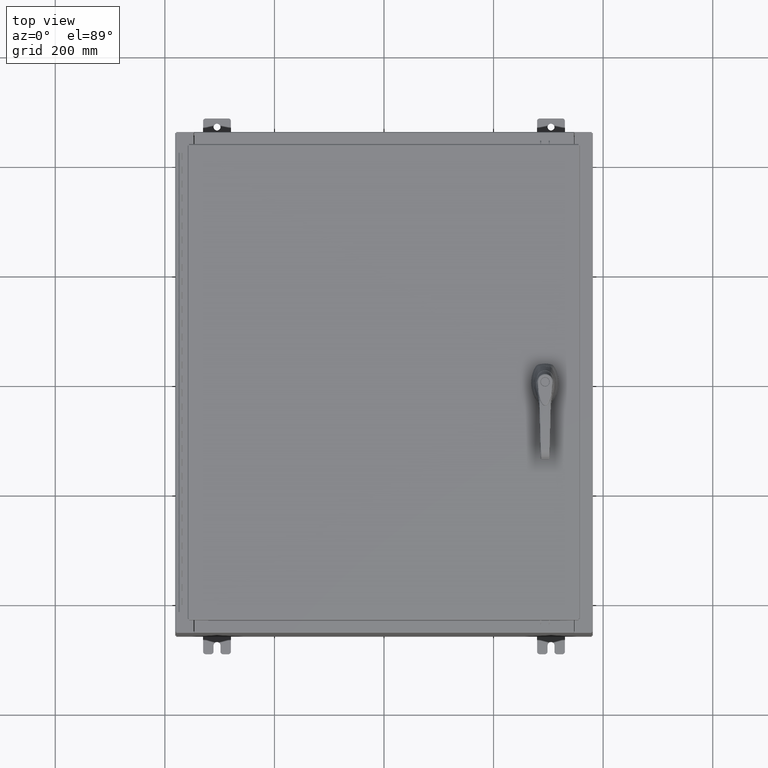
[diagram: clean part render]
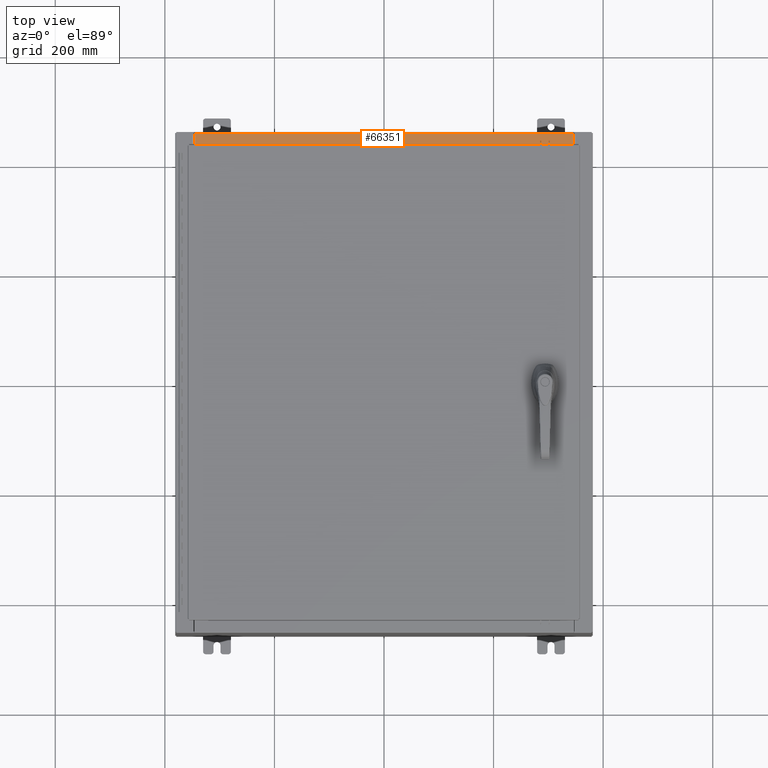
[diagram: same view with one face highlighted and labeled with its STEP entity id]
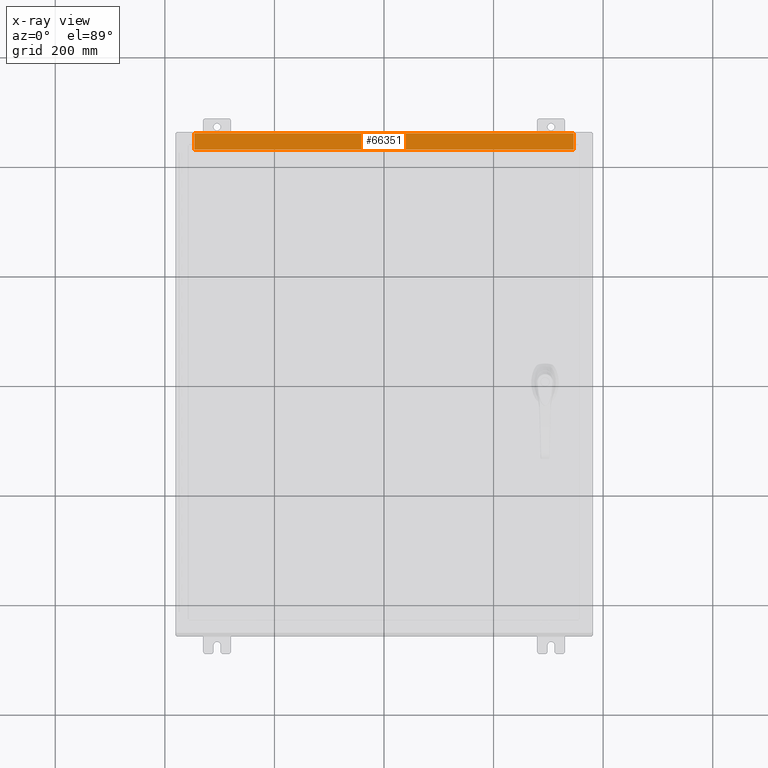
[diagram: x-ray of the same camera — body ghosted, the highlighted face saturated]
A machine part, top view. The second image highlights one B-rep face of the part: STEP entity #66351.
The next image is the same camera in x-ray: the body ghosted, the highlighted face saturated — about 0% of this face is hidden behind the body in this view.
In plain terms, the highlighted planar face has unit normal (0, 0, 1).
Its self-contained STEP definition (entity closure, byte-faithful):
#2759 = ORIENTED_EDGE ( 'NONE', *, *, #44813, .T. ) ;
#9835 = DIRECTION ( 'NONE',  ( 0.0000000000000000000, -1.000000000000000000, 3.566381192773190000E-015 ) ) ;
#12531 = DIRECTION ( 'NONE',  ( -0.0000000000000000000, 1.000000000000000000, -3.566381192773190000E-015 ) ) ;
#15283 = DIRECTION ( 'NONE',  ( -1.000000000000000000, 1.201939398262515800E-016, 8.012929321750060900E-017 ) ) ;
#17853 = LINE ( 'NONE', #53853, #113906 ) ;
#21173 = LINE ( 'NONE', #80868, #60066 ) ;
#26053 = DIRECTION ( 'NONE',  ( -1.000000000000000000, 0.0000000000000000000, 0.0000000000000000000 ) ) ;
#28460 = VECTOR ( 'NONE', #15283, 39.37007874015748100 ) ;
#30801 = CARTESIAN_POINT ( 'NONE',  ( 13.63720000000000400, -1.287300000000000300, 8.000000000000001800 ) ) ;
#34424 = LINE ( 'NONE', #62641, #28460 ) ;
#36756 = VERTEX_POINT ( 'NONE', #68708 ) ;
#37543 = ORIENTED_EDGE ( 'NONE', *, *, #64256, .F. ) ;
#44813 = EDGE_CURVE ( 'NONE', #46779, #124181, #34424, .T. ) ;
#46779 = VERTEX_POINT ( 'NONE', #49212 ) ;
#46992 = ORIENTED_EDGE ( 'NONE', *, *, #96906, .F. ) ;
#49212 = CARTESIAN_POINT ( 'NONE',  ( 13.63720000000000400, -0.08769999999999829300, 7.999999999999997300 ) ) ;
#53853 = CARTESIAN_POINT ( 'NONE',  ( 13.63720000000000400, -1.300299999999999800, 8.000000000000001800 ) ) ;
#55737 = ORIENTED_EDGE ( 'NONE', *, *, #112854, .F. ) ;
#55892 = CARTESIAN_POINT ( 'NONE',  ( -13.63719999999999800, -0.08769999999999862600, 8.000000000000000000 ) ) ;
#57595 = PLANE ( 'NONE',  #67854 ) ;
#60066 = VECTOR ( 'NONE', #12531, 39.37007874015748100 ) ;
#62641 = CARTESIAN_POINT ( 'NONE',  ( 6.299767562217697500E-016, -0.08769999999999862600, 7.999999999999999100 ) ) ;
#64256 = EDGE_CURVE ( 'NONE', #36756, #124181, #21173, .T. ) ;
#66351 = ADVANCED_FACE ( 'NONE', ( #124119 ), #57595, .T. ) ;
#67265 = DIRECTION ( 'NONE',  ( 8.012929321750104000E-017, 3.566381192773190000E-015, 1.000000000000000000 ) ) ;
#67854 = AXIS2_PLACEMENT_3D ( 'NONE', #95844, #67265, #9835 ) ;
#68708 = CARTESIAN_POINT ( 'NONE',  ( -13.63719999999999800, -1.287299999999999400, 8.000000000000003600 ) ) ;
#75043 = EDGE_LOOP ( 'NONE', ( #37543, #55737, #46992, #2759 ) ) ;
#80868 = CARTESIAN_POINT ( 'NONE',  ( -13.63719999999999800, -0.07469999999999973900, 8.000000000000000000 ) ) ;
#82040 = VERTEX_POINT ( 'NONE', #30801 ) ;
#94795 = VECTOR ( 'NONE', #26053, 39.37007874015748100 ) ;
#95844 = CARTESIAN_POINT ( 'NONE',  ( 6.405177647445352000E-016, 2.852545452309694500E-014, 7.999999999999999100 ) ) ;
#96906 = EDGE_CURVE ( 'NONE', #46779, #82040, #17853, .T. ) ;
#101753 = DIRECTION ( 'NONE',  ( -0.0000000000000000000, -1.000000000000000000, 3.566381192773190000E-015 ) ) ;
#112854 = EDGE_CURVE ( 'NONE', #82040, #36756, #120295, .T. ) ;
#113906 = VECTOR ( 'NONE', #101753, 39.37007874015748100 ) ;
#120295 = LINE ( 'NONE', #121682, #94795 ) ;
#121682 = CARTESIAN_POINT ( 'NONE',  ( 13.63720000000000400, -1.287300000000000300, 8.000000000000003600 ) ) ;
#124119 = FACE_OUTER_BOUND ( 'NONE', #75043, .T. ) ;
#124181 = VERTEX_POINT ( 'NONE', #55892 ) ;